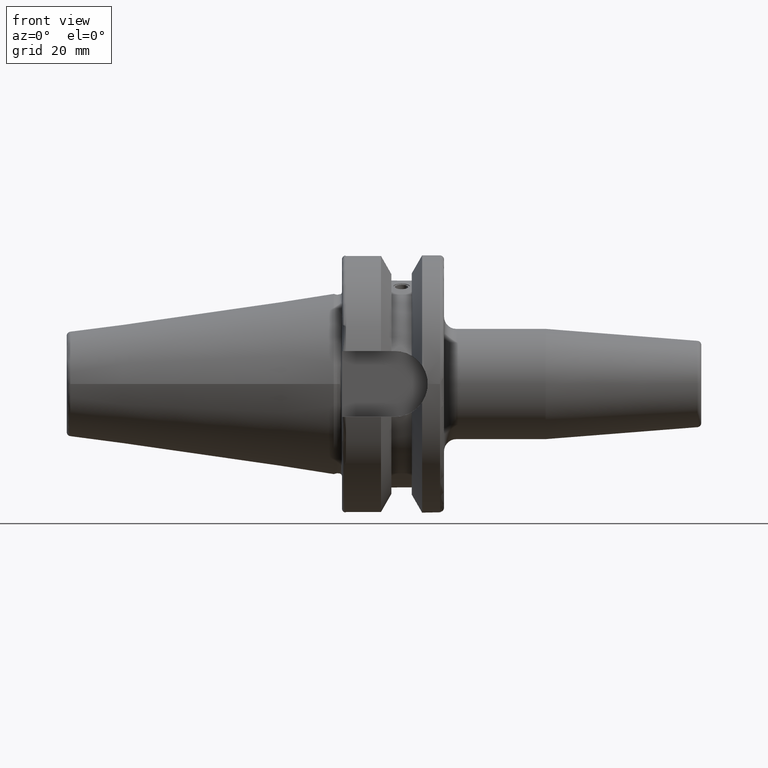
[diagram: clean part render]
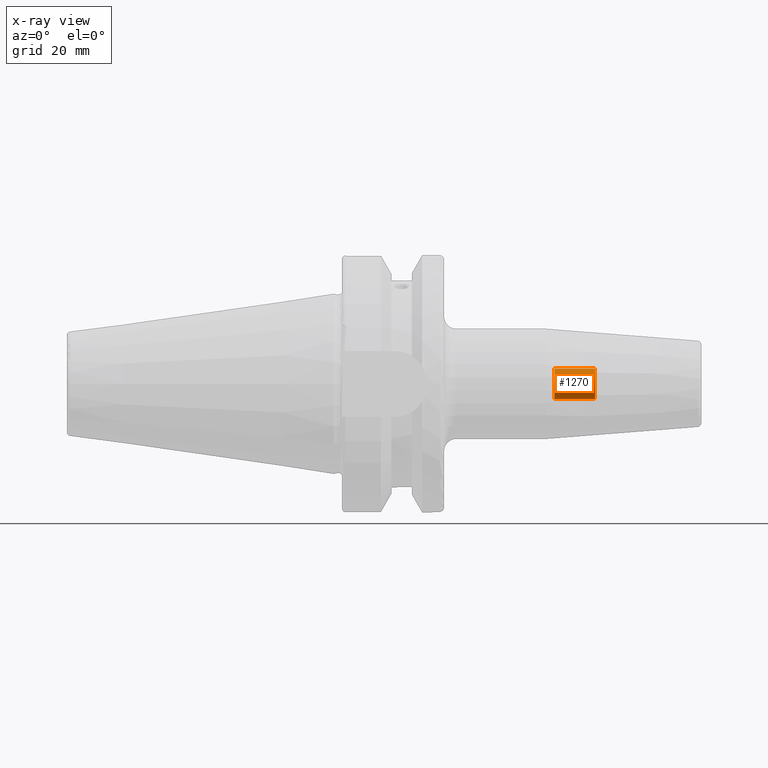
[diagram: x-ray — body ghosted, one internal face saturated and labeled with its STEP entity id]
A machine part, front view, then the same camera in x-ray: the body is ghosted and one INTERNAL B-rep face — a face not visible from any outside direction — is saturated and labeled: STEP entity #1270.
In plain terms, the highlighted cylindrical surface (bore or boss wall) has radius 3.775 mm, axis along (1, 0, 0).
Its self-contained STEP definition (entity closure, byte-faithful):
#100=CYLINDRICAL_SURFACE('',#1398,3.77499999999997);
#158=FACE_OUTER_BOUND('',#242,.T.);
#242=EDGE_LOOP('',(#926,#927,#928,#929));
#339=CIRCLE('',#1399,3.77499999999997);
#340=CIRCLE('',#1400,3.77499999999996);
#405=LINE('',#2114,#473);
#473=VECTOR('',#1639,3.77499999999997);
#557=VERTEX_POINT('',#2111);
#558=VERTEX_POINT('',#2113);
#697=EDGE_CURVE('',#557,#557,#339,.T.);
#698=EDGE_CURVE('',#557,#558,#405,.T.);
#699=EDGE_CURVE('',#558,#558,#340,.T.);
#926=ORIENTED_EDGE('',*,*,#697,.T.);
#927=ORIENTED_EDGE('',*,*,#698,.T.);
#928=ORIENTED_EDGE('',*,*,#699,.F.);
#929=ORIENTED_EDGE('',*,*,#698,.F.);
#1270=ADVANCED_FACE('',(#158),#100,.F.);
#1398=AXIS2_PLACEMENT_3D('',#2110,#1635,#1636);
#1399=AXIS2_PLACEMENT_3D('',#2112,#1637,#1638);
#1400=AXIS2_PLACEMENT_3D('',#2115,#1640,#1641);
#1635=DIRECTION('center_axis',(1.,0.,0.));
#1636=DIRECTION('ref_axis',(0.,0.,-1.));
#1637=DIRECTION('center_axis',(1.,0.,0.));
#1638=DIRECTION('ref_axis',(0.,0.,-1.));
#1639=DIRECTION('',(-1.,0.,0.));
#1640=DIRECTION('center_axis',(1.,0.,0.));
#1641=DIRECTION('ref_axis',(0.,0.,-1.));
#2110=CARTESIAN_POINT('Origin',(59.,0.,0.));
#2111=CARTESIAN_POINT('',(64.,-4.62304166678122E-16,3.77499999999997));
#2112=CARTESIAN_POINT('Origin',(64.,0.,0.));
#2113=CARTESIAN_POINT('',(54.,-4.62304166678122E-16,3.77499999999997));
#2114=CARTESIAN_POINT('',(59.,-4.62304166678122E-16,3.77499999999997));
#2115=CARTESIAN_POINT('Origin',(54.,0.,0.));